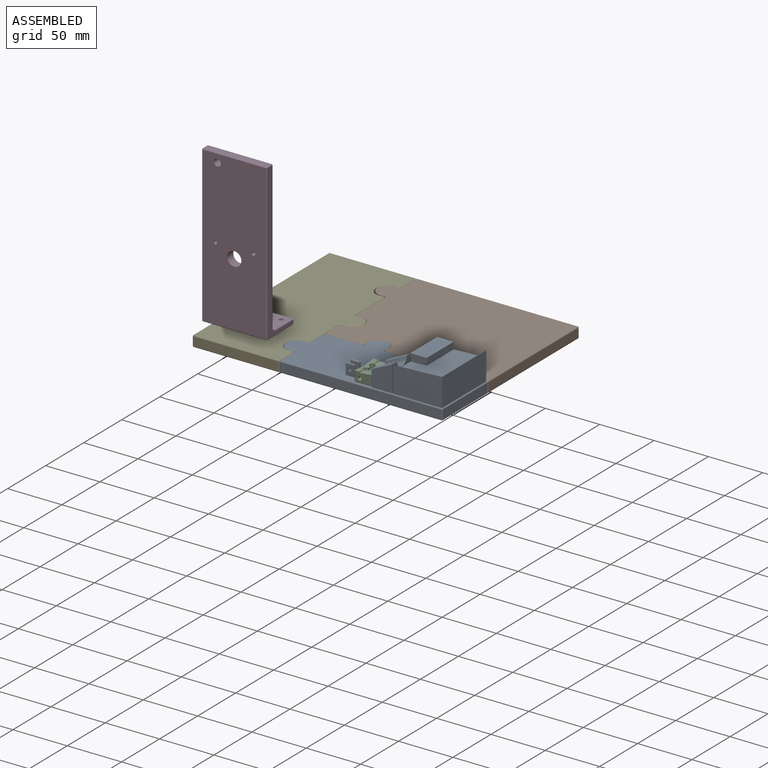
[diagram: assembled view]
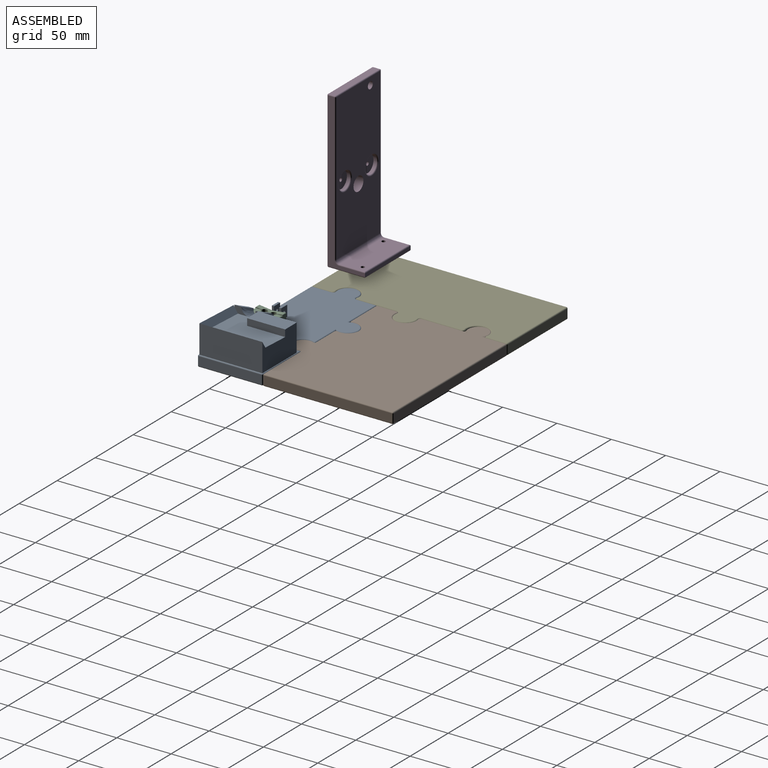
[diagram: assembled view, second angle]
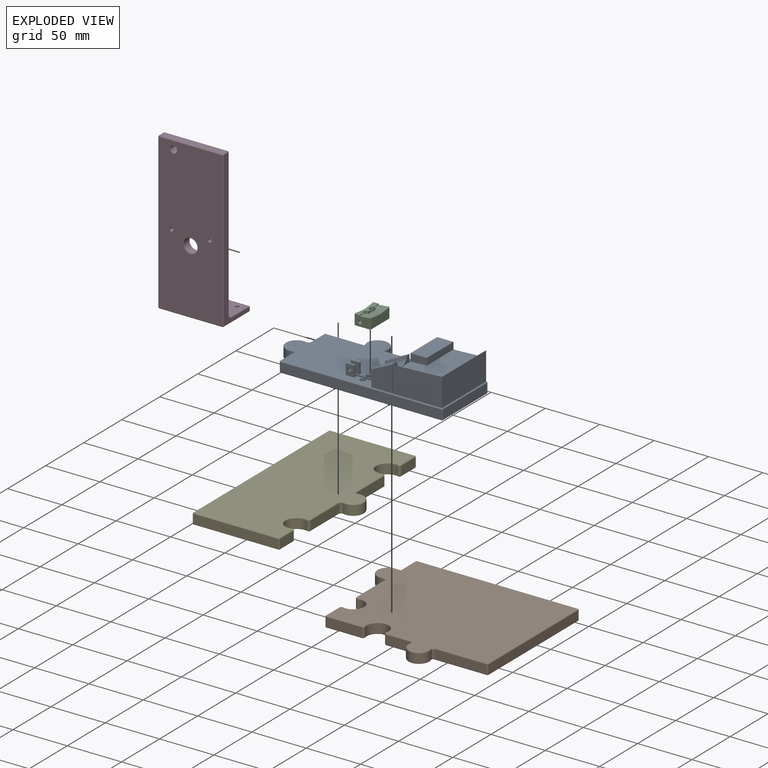
[diagram: exploded view]
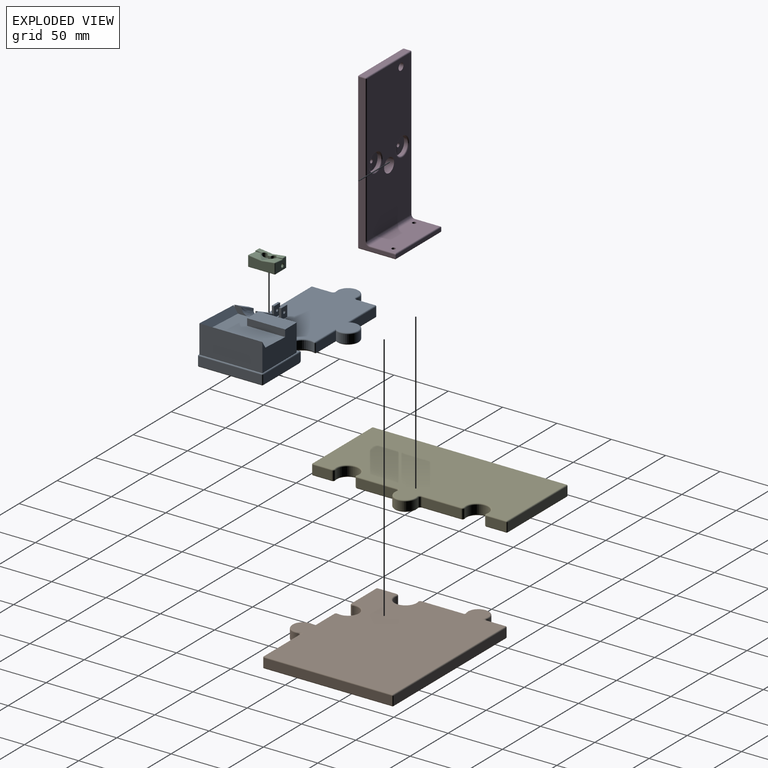
[diagram: exploded view, second angle]
ASSEMBLY  parts=5 mates=6
PART A: 104 faces, bbox 165.8x75.8x36 mm
  f0: plane 118x73mm, normal (0,0,1), area 5602.4mm2, adj f2,f3,f9,f27,f30,f31,f35,f36
  f1: plane 0.12x0.1mm, normal (0,0,1), area 0mm2, adj f78,f79,f87
  f2: plane 15x5.1mm, normal (-1,0,0), area 76.5mm2, adj f0,f6,f74,f75
  f3: plane 15x4.5mm, normal (-1,0,0), area 67.5mm2, adj f0,f5,f73,f76
  f4: bspline ~19x15.5mm, area 389.5mm2, adj f5,f6,f72,f77,f78,f79,f80
  f5: plane 19x9mm, normal (-0.43,0,0.9), area 115.6mm2, adj f3,f4,f72,f73,f76,f77
  f6: plane 19x9mm, normal (-0.43,0,0.9), area 94.3mm2, adj f2,f4,f72,f74,f75,f80
  f7: plane 54x41mm, normal (-0.04,0,1), area 1690.7mm2, adj f8,f9,f67,f68,f70,f71
  f8: plane 45x26mm, normal (0,1,0), area 967mm2, adj f7,f9,f61,f66,f68,f69,f71
  f9: plane 58x25mm, normal (-1,0,0), area 1301mm2, adj f0,f7,f8,f10,f67,f69,f70
  f10: plane 45x26mm, normal (0,-1,0), area 1125mm2, adj f9,f45,f66,f70
  f11: plane 26.09x8mm, normal (0,1,0), area 208.5mm2, adj f20,f47,f51,f55,f56
  f12: plane 35.34x8mm, normal (0,1,0), area 282.7mm2, adj f20,f37,f38,f46
  f13: plane 17.38x8mm, normal (-1,0,0), area 139mm2, adj f23,f28,f36,f37
  f14: plane 48.75x8mm, normal (0,1,0), area 389.8mm2, adj f53,f60,f61,f63,f65
  f15: plane 17.38x8mm, normal (-1,0,0), area 139mm2, adj f24,f33,f34,f35
  f16: plane 148x8mm, normal (0,-1,0), area 1184mm2, adj f34,f43,f44,f45
  f17: plane 58x8mm, normal (1,0,0), area 464mm2, adj f44,f52,f53,f54
  f18: plane 163x73mm, normal (0,0,-1), area 8726.1mm2, adj f22,f25,f26,f28,f29,f33,f38,f42
  f19: cylinder r=10mm len=20mm, axis (0,0,1), area 291.8mm2, adj f23,f24,f26,f27
  f20: cylinder r=10mm len=20mm, axis (0,0,1), area 335.1mm2, adj f11,f12,f42,f50
  f21: cylinder r=10mm len=20mm, axis (0,0,1), area 272mm2, adj f22,f56,f62,f65
  f22: torus R=12mm, axis (0,0,1), area 129.8mm2, adj f18,f21,f51,f63
  f23: cylinder r=2mm len=8mm, axis (0,0,1), area 29.2mm2, adj f13,f19,f25,f31
  f24: cylinder r=2mm len=8mm, axis (0,0,1), area 29.2mm2, adj f15,f19,f29,f30
  f25: torus R=3mm, axis (0,0,1), area 6.8mm2, adj f18,f23,f26,f28
  f26: torus R=9mm, axis (0,0,1), area 55.2mm2, adj f18,f19,f25,f29
  f27: torus R=9mm, axis (0,0,1), area 55.2mm2, adj f0,f19,f30,f31
  f28: cylinder r=1mm len=17.38mm, axis (0,-1,0), area 27.3mm2, adj f13,f18,f25,f32
  f29: torus R=3mm, axis (0,0,1), area 6.8mm2, adj f18,f24,f26,f33
  f30: torus R=3mm, axis (0,0,1), area 6.8mm2, adj f0,f24,f27,f35
  f31: torus R=3mm, axis (0,0,1), area 6.8mm2, adj f0,f23,f27,f36
  f32: sphere r=1mm, area 1.6mm2, adj f28,f37,f38
  f33: cylinder r=1mm len=17.38mm, axis (0,-1,0), area 27.3mm2, adj f15,f18,f29,f39
  f34: cylinder r=1mm len=8mm, axis (0,0,-1), area 12.6mm2, adj f15,f16,f39,f40
  f35: cylinder r=1mm len=17.38mm, axis (0,1,0), area 27.3mm2, adj f0,f15,f30,f40
  f36: cylinder r=1mm len=17.38mm, axis (0,1,0), area 27.3mm2, adj f0,f13,f31,f41
  f37: cylinder r=1mm len=8mm, axis (0,0,1), area 12.6mm2, adj f12,f13,f32,f41
  f38: cylinder r=1mm len=37.29mm, axis (-1,0,0), area 57mm2, adj f12,f18,f32,f42
  f39: sphere r=1mm, area 1.6mm2, adj f33,f34,f43
  f40: sphere r=1mm, area 1.6mm2, adj f34,f35,f45
  f41: sphere r=1mm, area 1.6mm2, adj f36,f37,f46
  f42: torus R=9mm, axis (0,0,1), area 66.5mm2, adj f18,f20,f38,f47
  f43: cylinder r=1mm len=148mm, axis (1,0,0), area 232.5mm2, adj f16,f18,f39,f48
  f44: cylinder r=1mm len=8mm, axis (0,0,1), area 12.6mm2, adj f16,f17,f48,f49
  f45: cylinder r=1mm len=148mm, axis (-1,0,0), area 232.5mm2, adj f0,f10,f16,f40,f49,f73
  f46: cylinder r=1mm len=37.29mm, axis (1,0,0), area 57mm2, adj f0,f12,f41,f50
  f47: cylinder r=1mm len=26.98mm, axis (-1,0,0), area 40.8mm2, adj f11,f18,f42,f51
  f48: sphere r=1mm, area 1.6mm2, adj f43,f44,f52
  f49: sphere r=1mm, area 1.6mm2, adj f44,f45,f54
  f50: torus R=9mm, axis (0,0,1), area 66.5mm2, adj f0,f20,f46,f55
  f51: bspline ~2.65x2.58mm, area 4.9mm2, adj f11,f22,f47,f56
  f52: cylinder r=1mm len=58mm, axis (0,1,0), area 91.1mm2, adj f17,f18,f48,f57
  f53: cylinder r=1mm len=8mm, axis (0,0,-1), area 12.6mm2, adj f14,f17,f57,f58
  f54: cylinder r=1mm len=58mm, axis (0,-1,0), area 91.1mm2, adj f17,f49,f58,f66
  f55: cylinder r=1mm len=28.05mm, axis (1,0,0), area 42.5mm2, adj f0,f11,f50,f59
  f56: cylinder r=1mm len=7mm, axis (0,0,1), area 13.6mm2, adj f11,f21,f51,f59
  f57: sphere r=1mm, area 1.6mm2, adj f52,f53,f60
  f58: sphere r=1mm, area 1.6mm2, adj f53,f54,f61
  f59: sphere r=1mm, area 1.9mm2, adj f55,f56,f62
  f60: cylinder r=1mm len=47.69mm, axis (-1,0,0), area 74.9mm2, adj f14,f18,f57,f63
  f61: cylinder r=1mm len=48.75mm, axis (1,0,0), area 76.6mm2, adj f0,f8,f14,f58,f64
  f62: torus R=11mm, axis (0,0,1), area 63.3mm2, adj f0,f21,f59,f64
  f63: bspline ~3x2.58mm, area 4.9mm2, adj f14,f22,f60,f65
  f64: sphere r=1mm, area 2.4mm2, adj f61,f62,f65
  f65: cylinder r=1mm len=7mm, axis (0,0,1), area 13.6mm2, adj f14,f21,f63,f64
  f66: plane 58x26mm, normal (1,0,0), area 1508mm2, adj f8,f10,f54,f71
  f67: plane 15x7mm, normal (0,-1,0), area 100mm2, adj f7,f9,f68,f69
  f68: plane 35x6.33mm, normal (1,0,0), area 221.7mm2, adj f7,f8,f67,f69
  f69: plane 35x15mm, normal (0,0,1), area 525mm2, adj f8,f9,f67,f68
  f70: plane 45x8mm, normal (-0.02,0.83,0.55), area 310.2mm2, adj f7,f9,f10,f71
  f71: plane 58x6.18mm, normal (-0.84,0,0.54), area 412.1mm2, adj f7,f8,f66,f70
  f72: plane 24x23mm, normal (1,0,0), area 485.6mm2, adj f0,f4,f5,f6,f73,f74
  f73: plane 24x19mm, normal (0,-1,0), area 370.5mm2, adj f3,f5,f45,f72
  f74: plane 24x19mm, normal (0,1,0), area 370.5mm2, adj f0,f2,f6,f72
  f75: plane 15.43x0.9mm, normal (0,-1,0), area 13.7mm2, adj f0,f2,f6,f80
  f76: plane 15.43x0.9mm, normal (0,1,0), area 13.7mm2, adj f0,f3,f5,f77
  f77: plane 15.44x6.02mm, normal (-1,0,0), area 63.2mm2, adj f0,f4,f5,f76,f78,f85
  f78: plane 9.5x1.2mm, normal (-0.5,0.86,0), area 12.8mm2, adj f1,f4,f77,f79,f85
  f79: plane 9.5x1.21mm, normal (-0.5,-0.86,0), area 12.8mm2, adj f1,f4,f78,f80,f86
  f80: plane 15.44x6.01mm, normal (-1,0,0), area 64.6mm2, adj f0,f4,f6,f75,f79,f86
  f81: plane 32x3mm, normal (0,-1,0), area 96mm2, adj f0,f82,f84,f86,f87
  f82: plane 32x2mm, normal (0,0,1), area 64mm2, adj f81,f83,f84,f87
  f83: plane 32x3mm, normal (0,1,0), area 96mm2, adj f0,f82,f84,f85,f87
  f84: plane 3x2mm, normal (1,0,0), area 6mm2, adj f0,f81,f82,f83
  f85: plane 1.1x0.94mm, normal (0,0,-1), area 0.7mm2, adj f77,f78,f83,f87
  f86: plane 1.1x0.94mm, normal (0,0,-1), area 0.7mm2, adj f79,f80,f81,f87
  f87: plane 3x2mm, normal (-1,0,0), area 6mm2, adj f1,f81,f82,f83,f85,f86
  f88: cylinder r=2.5mm len=8mm, axis (0,0,1), area 125.7mm2, adj f0,f89
  f89: plane 5x5mm, normal (0,0,1), area 19.6mm2, adj f88
  f90: cylinder r=2.5mm len=8mm, axis (0,0,1), area 125.7mm2, adj f0,f91
  f91: plane 5x5mm, normal (0,0,1), area 19.6mm2, adj f90
  f92: plane 10x2mm, normal (1,0,0), area 20mm2, adj f0,f93,f95,f96
  f93: plane 10x8mm, normal (0,1,0), area 74.5mm2, adj f0,f92,f94,f96,f103
  f94: plane 10x2mm, normal (-1,0,0), area 20mm2, adj f0,f93,f95,f96
  f95: plane 10x8mm, normal (0,-1,0), area 74.5mm2, adj f0,f92,f94,f96,f103
  f96: plane 8x2mm, normal (0,0,1), area 16mm2, adj f92,f93,f94,f95
  f97: plane 10x2mm, normal (-1,0,0), area 20mm2, adj f0,f98,f100,f101
  f98: plane 10x8mm, normal (0,-1,0), area 74.5mm2, adj f0,f97,f99,f101,f102
  f99: plane 10x2mm, normal (1,0,0), area 20mm2, adj f0,f98,f100,f101
  f100: plane 10x8mm, normal (0,1,0), area 74.5mm2, adj f0,f97,f99,f101,f102
  f101: plane 8x2mm, normal (0,0,1), area 16mm2, adj f97,f98,f99,f100
  f102: cylinder r=1.33mm len=2.65mm, axis (0,-1,0), area 16.7mm2, adj f98,f100
  f103: cylinder r=1.33mm len=2.65mm, axis (0,-1,0), area 16.7mm2, adj f93,f95
PART B: 82 faces, bbox 165.6x135.6x10 mm
  f0: cylinder r=2mm len=7.33mm, axis (0,0,1), area 26.8mm2, adj f1,f8,f16,f23
  f1: bspline ~2.75x2.4mm, area 3.2mm2, adj f0,f16,f23,f30,f32,f80
  f2: cylinder r=2mm len=7.33mm, axis (0,0,1), area 26.8mm2, adj f3,f9,f21,f23
  f3: bspline ~2.75x2.4mm, area 3.2mm2, adj f2,f21,f23,f28,f30,f78
  f4: cylinder r=2mm len=7.33mm, axis (0,0,1), area 26.8mm2, adj f5,f10,f15,f22
  f5: bspline ~2.75x2.4mm, area 3.2mm2, adj f4,f15,f22,f31,f33,f76
  f6: cylinder r=2mm len=7.33mm, axis (0,0,1), area 26.8mm2, adj f7,f11,f17,f22
  f7: bspline ~2.75x2.4mm, area 3.2mm2, adj f6,f17,f22,f29,f31,f74
  f8: bspline ~2.75x2.4mm, area 3.2mm2, adj f0,f16,f23,f40,f42,f81
  f9: bspline ~2.75x2.4mm, area 3.2mm2, adj f2,f21,f23,f38,f40,f79
  f10: bspline ~2.75x2.4mm, area 3.2mm2, adj f4,f15,f22,f45,f47,f77
  f11: bspline ~2.75x2.4mm, area 3.2mm2, adj f6,f17,f22,f43,f45,f75
  f12: plane 162.8x132.8mm, normal (0,0,-1), area 17363.9mm2, adj f38,f39,f40,f41,f42,f43,f44,f45
  f13: plane 162.8x132.8mm, normal (0,0,1), area 17363.9mm2, adj f26,f27,f28,f29,f30,f31,f32,f33
  f14: plane 17.59x8mm, normal (-1,0,0), area 140.7mm2, adj f36,f46,f60,f72
  f15: plane 22.18x8mm, normal (0,-1,0), area 177.4mm2, adj f4,f5,f10,f33,f47,f69
  f16: plane 37.18x8mm, normal (-1,0,0), area 297.4mm2, adj f0,f1,f8,f32,f42,f66
  f17: plane 47.59x8mm, normal (0,-1,0), area 380.7mm2, adj f6,f7,f11,f29,f43,f51
  f18: plane 32.59x8mm, normal (0,-1,0), area 260.7mm2, adj f37,f48,f60,f63
  f19: plane 118x8mm, normal (1,0,0), area 944mm2, adj f27,f41,f51,f54
  f20: plane 148x8mm, normal (0,1,0), area 1184mm2, adj f26,f39,f54,f57
  f21: plane 17.59x8mm, normal (-1,0,0), area 140.7mm2, adj f2,f3,f9,f28,f38,f57
  f22: cylinder r=9.8mm len=19.6mm, axis (0,0,1), area 286.6mm2, adj f4,f5,f6,f7,f10,f11,f31,f45
  f23: cylinder r=9.8mm len=19.6mm, axis (0,0,1), area 286.6mm2, adj f0,f1,f2,f3,f8,f9,f30,f40
  f24: cylinder r=9.8mm len=19.6mm, axis (0,0,1), area 286.6mm2, adj f34,f44,f66,f72
  f25: cylinder r=9.8mm len=19.6mm, axis (0,0,1), area 286.6mm2, adj f35,f49,f63,f69
  f26: cylinder r=1mm len=148mm, axis (1,0,0), area 232.5mm2, adj f13,f20,f55,f58
  f27: cylinder r=1mm len=118mm, axis (0,-1,0), area 185.4mm2, adj f13,f19,f52,f55
  f28: cylinder r=1mm len=22.56mm, axis (0,1,0), area 30.5mm2, adj f3,f13,f21,f58,f78
  f29: cylinder r=1mm len=52.56mm, axis (-1,0,0), area 77.7mm2, adj f7,f13,f17,f52,f74
  f30: torus R=8.8mm, axis (0,0,1), area 59.3mm2, adj f1,f3,f13,f23,f78,f80
  f31: torus R=8.8mm, axis (0,0,1), area 59.3mm2, adj f5,f7,f13,f22,f74,f76
  f32: cylinder r=1mm len=42.15mm, axis (0,1,0), area 61.3mm2, adj f1,f13,f16,f67,f80
  f33: cylinder r=1mm len=27.15mm, axis (-1,0,0), area 37.7mm2, adj f5,f13,f15,f70,f76
  f34: torus R=10.8mm, axis (0,0,1), area 58.4mm2, adj f13,f24,f67,f73
  f35: torus R=10.8mm, axis (0,0,1), area 58.4mm2, adj f13,f25,f64,f70
  f36: cylinder r=1mm len=17.59mm, axis (0,1,0), area 27.6mm2, adj f13,f14,f61,f73
  f37: cylinder r=1mm len=32.59mm, axis (-1,0,0), area 51.2mm2, adj f13,f18,f61,f64
  f38: cylinder r=1mm len=22.56mm, axis (0,-1,0), area 30.5mm2, adj f9,f12,f21,f56,f79
  f39: cylinder r=1mm len=148mm, axis (-1,0,0), area 232.5mm2, adj f12,f20,f53,f56
  f40: torus R=8.8mm, axis (0,0,1), area 59.3mm2, adj f8,f9,f12,f23,f79,f81
  f41: cylinder r=1mm len=118mm, axis (0,1,0), area 185.4mm2, adj f12,f19,f50,f53
  f42: cylinder r=1mm len=42.15mm, axis (0,-1,0), area 61.3mm2, adj f8,f12,f16,f65,f81
  f43: cylinder r=1mm len=52.56mm, axis (1,0,0), area 77.7mm2, adj f11,f12,f17,f50,f75
  f44: torus R=10.8mm, axis (0,0,1), area 58.4mm2, adj f12,f24,f65,f71
  f45: torus R=8.8mm, axis (0,0,1), area 59.3mm2, adj f10,f11,f12,f22,f75,f77
  f46: cylinder r=1mm len=17.59mm, axis (0,-1,0), area 27.6mm2, adj f12,f14,f59,f71
  f47: cylinder r=1mm len=27.15mm, axis (1,0,0), area 37.7mm2, adj f10,f12,f15,f68,f77
  f48: cylinder r=1mm len=32.59mm, axis (1,0,0), area 51.2mm2, adj f12,f18,f59,f62
  f49: torus R=10.8mm, axis (0,0,1), area 58.4mm2, adj f12,f25,f62,f68
  f50: sphere r=1mm, area 1.6mm2, adj f41,f43,f51
  f51: cylinder r=1mm len=8mm, axis (0,0,1), area 12.6mm2, adj f17,f19,f50,f52
  f52: sphere r=1mm, area 1.6mm2, adj f27,f29,f51
  f53: sphere r=1mm, area 1mm2, adj f39,f41,f54
  f54: cylinder r=1mm len=8mm, axis (0,0,-1), area 12.6mm2, adj f19,f20,f53,f55
  f55: sphere r=1mm, area 1mm2, adj f26,f27,f54
  f56: sphere r=1mm, area 2.1mm2, adj f38,f39,f57
  f57: cylinder r=1mm len=8mm, axis (0,0,1), area 12.6mm2, adj f20,f21,f56,f58
  f58: sphere r=1mm, area 2.1mm2, adj f26,f28,f57
  f59: sphere r=1mm, area 1.6mm2, adj f46,f48,f60
  f60: cylinder r=1mm len=8mm, axis (0,0,-1), area 12.6mm2, adj f14,f18,f59,f61
  f61: sphere r=1mm, area 1.6mm2, adj f36,f37,f60
  f62: torus R=1mm, axis (0,0,1), area 4.7mm2, adj f12,f48,f49,f63
  f63: cylinder r=2mm len=8mm, axis (0,0,1), area 29.2mm2, adj f18,f25,f62,f64
  f64: torus R=1mm, axis (0,0,1), area 4.7mm2, adj f13,f35,f37,f63
  f65: torus R=1mm, axis (0,0,1), area 4.7mm2, adj f12,f42,f44,f66
  f66: cylinder r=2mm len=8mm, axis (0,0,1), area 29.2mm2, adj f16,f24,f65,f67
  f67: torus R=1mm, axis (0,0,1), area 4.7mm2, adj f13,f32,f34,f66
  f68: torus R=1mm, axis (0,0,1), area 4.7mm2, adj f12,f47,f49,f69
  f69: cylinder r=2mm len=8mm, axis (0,0,1), area 29.2mm2, adj f15,f25,f68,f70
  f70: torus R=1mm, axis (0,0,1), area 4.7mm2, adj f13,f33,f35,f69
  f71: torus R=1mm, axis (0,0,1), area 4.7mm2, adj f12,f44,f46,f72
  f72: cylinder r=2mm len=8mm, axis (0,0,1), area 29.2mm2, adj f14,f24,f71,f73
  f73: torus R=1mm, axis (0,0,1), area 4.7mm2, adj f13,f34,f36,f72
  f74: bspline ~4.34x3.04mm, area 2.8mm2, adj f7,f29,f31
  f75: bspline ~4.34x3.04mm, area 2.8mm2, adj f11,f43,f45
  f76: bspline ~4.34x3.04mm, area 2.8mm2, adj f5,f31,f33
  f77: bspline ~4.34x3.04mm, area 2.8mm2, adj f10,f45,f47
  f78: bspline ~4.34x3.04mm, area 2.8mm2, adj f3,f28,f30
  f79: bspline ~4.34x3.04mm, area 2.8mm2, adj f9,f38,f40
  f80: bspline ~4.34x3.04mm, area 2.8mm2, adj f1,f30,f32
  f81: bspline ~4.34x3.04mm, area 2.8mm2, adj f8,f40,f42
PART C: 50 faces, bbox 15.1x25.1x10.1 mm
  f0: cylinder r=2.5mm len=8.78mm, axis (0,0,-1), area 110.9mm2, adj f4,f11,f12,f16,f46,f47,f49
  f1: cylinder r=2.5mm len=8.78mm, axis (0,0,-1), area 110.7mm2, adj f2,f10,f11,f17,f45,f48,f49
  f2: plane 12.07x4.63mm, normal (0,0.12,0.99), area 44.2mm2, adj f1,f4,f17,f34,f38,f49
  f3: plane 0.04x0.02mm, normal (0,0.12,0.99), area 0mm2, adj f14,f21,f47
  f4: plane 12.07x4.63mm, normal (0,-0.12,0.99), area 44.2mm2, adj f0,f2,f16,f31,f36,f49
  f5: plane 24x8.94mm, normal (1,0,0), area 197.2mm2, adj f19,f20,f21,f23,f24
  f6: plane 14x8.95mm, normal (0,-1,0), area 108.1mm2, adj f17,f23,f28,f34,f35,f41,f44
  f7: plane 14x8.95mm, normal (0,1,0), area 108.1mm2, adj f16,f20,f25,f30,f31,f39,f43
  f8: plane 24x8.94mm, normal (-1,0,0), area 197.2mm2, adj f29,f30,f35,f36,f38
  f9: plane 24x14mm, normal (0,0,-1), area 279.5mm2, adj f24,f25,f28,f29,f45,f46
  f10: cylinder r=1.5mm len=5.5mm, axis (0,-1,0), area 51.8mm2, adj f1,f44
  f11: cylinder r=1.5mm len=3mm, axis (0,-1,0), area 28.3mm2, adj f0,f1
  f12: cylinder r=1.5mm len=5.5mm, axis (0,-1,0), area 51.8mm2, adj f0,f43
  f13: plane 11.96x6.8mm, normal (0,0.12,0.99), area 41mm2, adj f18,f21,f41,f42,f48
  f14: plane 12.06x6.84mm, normal (0,-0.12,0.99), area 41.7mm2, adj f3,f15,f19,f39,f40,f47
  f15: plane 9.4x5.61mm, normal (-0.1,0,1), area 32.6mm2, adj f14,f16,f39,f47
  f16: plane 6.02x1.46mm, normal (1,0,0), area 4mm2, adj f0,f4,f7,f15,f31,f39,f47
  f17: plane 6.02x1.46mm, normal (1,0,0), area 4mm2, adj f1,f2,f6,f18,f34,f41,f48
  f18: plane 9.4x5.58mm, normal (-0.1,0,1), area 32.4mm2, adj f13,f17,f41,f48
  f19: cylinder r=0.5mm len=12.16mm, axis (0,0.99,0.12), area 9.5mm2, adj f5,f14,f20,f21,f40
  f20: cylinder r=0.5mm len=8.95mm, axis (0,0,-1), area 7mm2, adj f5,f7,f19,f22,f40
  f21: cylinder r=0.5mm len=12.16mm, axis (0,0.99,-0.12), area 9.5mm2, adj f3,f5,f13,f19,f23,f42,f47,f48
  f22: sphere r=0.5mm, area 0.3mm2, adj f20,f24,f25
  f23: cylinder r=0.5mm len=8.95mm, axis (0,0,1), area 7mm2, adj f5,f6,f21,f26,f42
  f24: cylinder r=0.5mm len=24mm, axis (0,1,0), area 18.8mm2, adj f5,f9,f22,f26
  f25: cylinder r=0.5mm len=14mm, axis (-1,0,0), area 11mm2, adj f7,f9,f22,f27
  f26: sphere r=0.5mm, area 0.4mm2, adj f23,f24,f28
  f27: sphere r=0.5mm, area 0.4mm2, adj f25,f29,f30
  f28: cylinder r=0.5mm len=14mm, axis (1,0,0), area 11mm2, adj f6,f9,f26,f32
  f29: cylinder r=0.5mm len=24mm, axis (0,-1,0), area 18.8mm2, adj f8,f9,f27,f32
  f30: cylinder r=0.5mm len=8.94mm, axis (0,0,1), area 7mm2, adj f7,f8,f27,f33
  f31: cylinder r=0.5mm len=4.5mm, axis (-1,0,0), area 3.8mm2, adj f4,f7,f16,f33
  f32: sphere r=0.5mm, area 0.4mm2, adj f28,f29,f35
  f33: sphere r=0.5mm, area 0.4mm2, adj f30,f31,f36
  f34: cylinder r=0.5mm len=4.5mm, axis (1,0,0), area 3.8mm2, adj f2,f6,f17,f37
  f35: cylinder r=0.5mm len=8.94mm, axis (0,0,-1), area 7mm2, adj f6,f8,f32,f37
  f36: cylinder r=0.5mm len=12.06mm, axis (0,0.99,0.12), area 9.5mm2, adj f4,f8,f33,f38
  f37: sphere r=0.5mm, area 0.4mm2, adj f34,f35,f38
  f38: cylinder r=0.5mm len=12.06mm, axis (0,0.99,-0.12), area 9.5mm2, adj f2,f8,f36,f37
  f39: cylinder r=0.5mm len=9.55mm, axis (1,0,0.1), area 7.5mm2, adj f7,f14,f15,f16,f40
  f40: sphere r=0.5mm, area 0.4mm2, adj f14,f19,f20,f39
  f41: cylinder r=0.5mm len=9.55mm, axis (-1,0,-0.1), area 7.5mm2, adj f6,f13,f17,f18,f42
  f42: sphere r=0.5mm, area 0.4mm2, adj f13,f21,f23,f41
  f43: torus R=2mm, axis (0,-1,0), area 8.3mm2, adj f7,f12
  f44: torus R=2mm, axis (0,-1,0), area 8.3mm2, adj f6,f10
  f45: torus R=3mm, axis (0,0,1), area 13.2mm2, adj f1,f9
  f46: torus R=3mm, axis (0,0,1), area 13.2mm2, adj f0,f9
  f47: plane 9.55x7.53mm, normal (-0.24,-0.36,0.9), area 34.2mm2, adj f0,f3,f14,f15,f16,f21,f48,f49
  f48: plane 9.55x7.47mm, normal (-0.24,0.36,0.9), area 34.1mm2, adj f1,f13,f17,f18,f21,f47,f49
  f49: plane 3x2.68mm, normal (1,0,0), area 6.9mm2, adj f0,f1,f2,f4,f47,f48
PART D: 44 faces, bbox 60x35x144 mm
  f0: cylinder r=1.72mm len=4mm, axis (0,1,0), area 43.4mm2, adj f9,f17
  f1: cylinder r=1.72mm len=4mm, axis (0,1,0), area 43.4mm2, adj f9,f15
  f2: plane 135x58mm, normal (0,1,0), area 7155.1mm2, adj f6,f7,f18,f29,f37,f41,f42,f43
  f3: plane 58x33mm, normal (0,0,-1), area 1895.3mm2, adj f12,f13,f19,f20,f21,f22
  f4: plane 142x34mm, normal (1,0,0), area 939.4mm2, adj f11,f20,f24,f25,f28,f29,f30
  f5: plane 58x6mm, normal (0,0,1), area 348mm2, adj f30,f31,f37,f38
  f6: cylinder r=3.25mm len=8mm, axis (0,1,0), area 163.4mm2, adj f2,f9
  f7: cylinder r=6.5mm len=13mm, axis (0,1,0), area 326.7mm2, adj f2,f9
  f8: plane 142x34mm, normal (-1,0,0), area 939.4mm2, adj f11,f21,f32,f36,f38,f39,f41
  f9: plane 142x58mm, normal (0,-1,0), area 8051.4mm2, adj f0,f1,f6,f7,f19,f24,f31,f32
  f10: plane 58x23mm, normal (0,0,1), area 1315.3mm2, adj f12,f13,f18,f28,f33,f36
  f11: plane 60x3mm, normal (0,1,0), area 180mm2, adj f4,f8,f22,f33
  f12: cylinder r=1.72mm len=5mm, axis (0,0,1), area 54.2mm2, adj f3,f10
  f13: cylinder r=1.72mm len=5mm, axis (0,0,1), area 54.2mm2, adj f3,f10
  f14: cylinder r=8mm len=16mm, axis (0,1,0), area 150.8mm2, adj f15,f42
  f15: plane 16x16mm, normal (0,1,0), area 191.7mm2, adj f1,f14
  f16: cylinder r=8mm len=16mm, axis (0,1,0), area 150.8mm2, adj f17,f43
  f17: plane 16x16mm, normal (0,1,0), area 191.7mm2, adj f0,f16
  f18: cylinder r=3mm len=58mm, axis (-1,0,0), area 273.3mm2, adj f2,f10,f25,f39
  f19: cylinder r=1mm len=58mm, axis (-1,0,0), area 91.1mm2, adj f3,f9,f23,f27
  f20: cylinder r=1mm len=34mm, axis (0,-1,0), area 52.8mm2, adj f3,f4,f22,f23
  f21: cylinder r=1mm len=34mm, axis (0,1,0), area 52.8mm2, adj f3,f8,f22,f27
  f22: cylinder r=1mm len=60mm, axis (1,0,0), area 93.1mm2, adj f3,f11,f20,f21
  f23: sphere r=1mm, area 1.6mm2, adj f19,f20,f24
  f24: cylinder r=1mm len=142mm, axis (0,0,-1), area 223.1mm2, adj f4,f9,f23,f26
  f25: torus R=4mm, axis (-1,0,0), area 8.3mm2, adj f4,f18,f28,f29
  f26: sphere r=1mm, area 1.6mm2, adj f24,f30,f31
  f27: sphere r=1mm, area 1.6mm2, adj f19,f21,f32
  f28: cylinder r=1mm len=24mm, axis (0,-1,0), area 37.1mm2, adj f4,f10,f25,f33
  f29: cylinder r=1mm len=135mm, axis (0,0,1), area 212.1mm2, adj f2,f4,f25,f34
  f30: cylinder r=1mm len=6mm, axis (0,1,0), area 9.4mm2, adj f4,f5,f26,f34
  f31: cylinder r=1mm len=58mm, axis (1,0,0), area 91.1mm2, adj f5,f9,f26,f35
  f32: cylinder r=1mm len=142mm, axis (0,0,1), area 223.1mm2, adj f8,f9,f27,f35
  f33: cylinder r=1mm len=60mm, axis (1,0,0), area 93.1mm2, adj f10,f11,f28,f36
  f34: sphere r=1mm, area 1.6mm2, adj f29,f30,f37
  f35: sphere r=1mm, area 1.6mm2, adj f31,f32,f38
  f36: cylinder r=1mm len=24mm, axis (0,1,0), area 37.1mm2, adj f8,f10,f33,f39
  f37: cylinder r=1mm len=58mm, axis (-1,0,0), area 91.1mm2, adj f2,f5,f34,f40
  f38: cylinder r=1mm len=6mm, axis (0,-1,0), area 9.4mm2, adj f5,f8,f35,f40
  f39: torus R=4mm, axis (-1,0,0), area 8.3mm2, adj f8,f18,f36,f41
  f40: sphere r=1mm, area 1.6mm2, adj f37,f38,f41
  f41: cylinder r=1mm len=135mm, axis (0,0,-1), area 212.1mm2, adj f2,f8,f39,f40
  f42: torus R=9mm, axis (0,-1,0), area 82.5mm2, adj f2,f14
  f43: torus R=9mm, axis (0,-1,0), area 82.5mm2, adj f2,f16
PART E: 62 faces, bbox 180x95.8x10 mm
  f0: plane 36.76x8mm, normal (0,-1,0), area 294.1mm2, adj f13,f17,f20,f30
  f1: plane 17.38x8mm, normal (0,-1,0), area 139mm2, adj f16,f24,f31,f32
  f2: plane 35.92x8mm, normal (0,-1,0), area 287.4mm2, adj f12,f15,f34,f48
  f3: plane 178x8mm, normal (0,1,0), area 1424mm2, adj f41,f42,f49,f50
  f4: plane 78x8mm, normal (-1,0,0), area 624mm2, adj f32,f33,f40,f41
  f5: plane 18.22x8mm, normal (0,-1,0), area 145.8mm2, adj f14,f52,f58,f61
  f6: plane 78x8mm, normal (1,0,0), area 624mm2, adj f50,f51,f57,f58
  f7: plane 178x93mm, normal (0,0,1), area 13566mm2, adj f23,f26,f27,f30,f31,f35,f39,f40
  f8: plane 178x93mm, normal (0,0,-1), area 13566mm2, adj f18,f19,f20,f21,f22,f24,f25,f29
  f9: cylinder r=10mm len=20mm, axis (0,0,1), area 291.8mm2, adj f14,f15,f43,f56
  f10: cylinder r=10mm len=20mm, axis (0,0,1), area 291.8mm2, adj f16,f17,f19,f23
  f11: cylinder r=10mm len=20mm, axis (0,0,1), area 291.8mm2, adj f12,f13,f25,f39
  f12: cylinder r=2mm len=8mm, axis (0,0,1), area 29.2mm2, adj f2,f11,f29,f44
  f13: cylinder r=2mm len=8mm, axis (0,0,1), area 29.2mm2, adj f0,f11,f22,f35
  f14: cylinder r=2mm len=8mm, axis (0,0,1), area 29.2mm2, adj f5,f9,f47,f59
  f15: cylinder r=2mm len=8mm, axis (0,0,1), area 29.2mm2, adj f2,f9,f38,f53
  f16: cylinder r=2mm len=8mm, axis (0,0,1), area 29.2mm2, adj f1,f10,f21,f27
  f17: cylinder r=2mm len=8mm, axis (0,0,1), area 29.2mm2, adj f0,f10,f18,f26
  f18: torus R=1mm, axis (0,0,1), area 4.7mm2, adj f8,f17,f19,f20
  f19: torus R=11mm, axis (0,0,1), area 59.4mm2, adj f8,f10,f18,f21
  f20: cylinder r=1mm len=36.76mm, axis (1,0,0), area 57.7mm2, adj f0,f8,f18,f22
  f21: torus R=1mm, axis (0,0,1), area 4.7mm2, adj f8,f16,f19,f24
  f22: torus R=3mm, axis (0,0,1), area 6.8mm2, adj f8,f13,f20,f25
  f23: torus R=11mm, axis (0,0,1), area 59.4mm2, adj f7,f10,f26,f27
  f24: cylinder r=1mm len=17.38mm, axis (1,0,0), area 27.3mm2, adj f1,f8,f21,f28
  f25: torus R=9mm, axis (0,0,1), area 55.2mm2, adj f8,f11,f22,f29
  f26: torus R=1mm, axis (0,0,1), area 4.7mm2, adj f7,f17,f23,f30
  f27: torus R=1mm, axis (0,0,1), area 4.7mm2, adj f7,f16,f23,f31
  f28: sphere r=1mm, area 1.6mm2, adj f24,f32,f33
  f29: torus R=3mm, axis (0,0,1), area 6.8mm2, adj f8,f12,f25,f34
  f30: cylinder r=1mm len=36.76mm, axis (-1,0,0), area 57.7mm2, adj f0,f7,f26,f35
  f31: cylinder r=1mm len=17.38mm, axis (-1,0,0), area 27.3mm2, adj f1,f7,f27,f36
  f32: cylinder r=1mm len=8mm, axis (0,0,-1), area 12.6mm2, adj f1,f4,f28,f36
  f33: cylinder r=1mm len=78mm, axis (0,-1,0), area 122.5mm2, adj f4,f8,f28,f37
  f34: cylinder r=1mm len=35.92mm, axis (1,0,0), area 56.4mm2, adj f2,f8,f29,f38
  f35: torus R=3mm, axis (0,0,1), area 6.8mm2, adj f7,f13,f30,f39
  f36: sphere r=1mm, area 1.6mm2, adj f31,f32,f40
  f37: sphere r=1mm, area 1.6mm2, adj f33,f41,f42
  f38: torus R=1mm, axis (0,0,1), area 4.7mm2, adj f8,f15,f34,f43
  f39: torus R=9mm, axis (0,0,1), area 55.2mm2, adj f7,f11,f35,f44
  f40: cylinder r=1mm len=78mm, axis (0,1,0), area 122.5mm2, adj f4,f7,f36,f45
  f41: cylinder r=1mm len=8mm, axis (0,0,1), area 12.6mm2, adj f3,f4,f37,f45
  f42: cylinder r=1mm len=178mm, axis (-1,0,0), area 279.6mm2, adj f3,f8,f37,f46
  f43: torus R=11mm, axis (0,0,1), area 59.4mm2, adj f8,f9,f38,f47
  f44: torus R=3mm, axis (0,0,1), area 6.8mm2, adj f7,f12,f39,f48
  f45: sphere r=1mm, area 1.6mm2, adj f40,f41,f49
  f46: sphere r=1mm, area 1.6mm2, adj f42,f50,f51
  f47: torus R=1mm, axis (0,0,1), area 4.7mm2, adj f8,f14,f43,f52
  f48: cylinder r=1mm len=35.92mm, axis (-1,0,0), area 56.4mm2, adj f2,f7,f44,f53
  f49: cylinder r=1mm len=178mm, axis (1,0,0), area 279.6mm2, adj f3,f7,f45,f54
  f50: cylinder r=1mm len=8mm, axis (0,0,-1), area 12.6mm2, adj f3,f6,f46,f54
  f51: cylinder r=1mm len=78mm, axis (0,1,0), area 122.5mm2, adj f6,f8,f46,f55
  f52: cylinder r=1mm len=18.22mm, axis (1,0,0), area 28.6mm2, adj f5,f8,f47,f55
  f53: torus R=1mm, axis (0,0,1), area 4.7mm2, adj f7,f15,f48,f56
  f54: sphere r=1mm, area 1.6mm2, adj f49,f50,f57
  f55: sphere r=1mm, area 1.6mm2, adj f51,f52,f58
  f56: torus R=11mm, axis (0,0,1), area 59.4mm2, adj f7,f9,f53,f59
  f57: cylinder r=1mm len=78mm, axis (0,-1,0), area 122.5mm2, adj f6,f7,f54,f60
  f58: cylinder r=1mm len=8mm, axis (0,0,1), area 12.6mm2, adj f5,f6,f55,f60
  f59: torus R=1mm, axis (0,0,1), area 4.7mm2, adj f7,f14,f56,f61
  f60: sphere r=1mm, area 1.6mm2, adj f57,f58,f61
  f61: cylinder r=1mm len=18.22mm, axis (-1,0,0), area 28.6mm2, adj f5,f7,f59,f60
PLACE A rot(axis=(-0.06,1,0.05),0deg) t=(-5.57,-74.6,-29.16)mm
PLACE B t=(144.43,-74.6,-29.16)mm
PLACE C rot(axis=(0,-1,-0.04),0deg) t=(78.43,-109.48,-18.19)mm
PLACE D t=(-19.89,-122.48,-7.86)mm
PLACE E rot(axis=(0,0,1),90deg) t=(-45.57,-44.6,-29.16)mm
MATE parallel A.f19 <-> E.f10  axis (0,0,1) through (-10.57,-104.6,-24.16)mm
MATE fastened E.f1 <-> A.f15  axis (1,0,0) through (-5.57,-133.6,-24.16)mm
MATE parallel B.f22 <-> A.f21  axis (0,0,1) through (84.43,-79.6,-28.16)mm
MATE parallel C.f5 <-> A.f3  axis (1,0,0) through (78.43,-121.98,-13.57)mm
MATE fastened B.f17 <-> A.f14  axis (0,-1,0) through (143.43,-74.6,-24.16)mm
MATE parallel C.f9 <-> A.f18  axis (0,0,-1) through (71.44,-121.98,-18.19)mm
